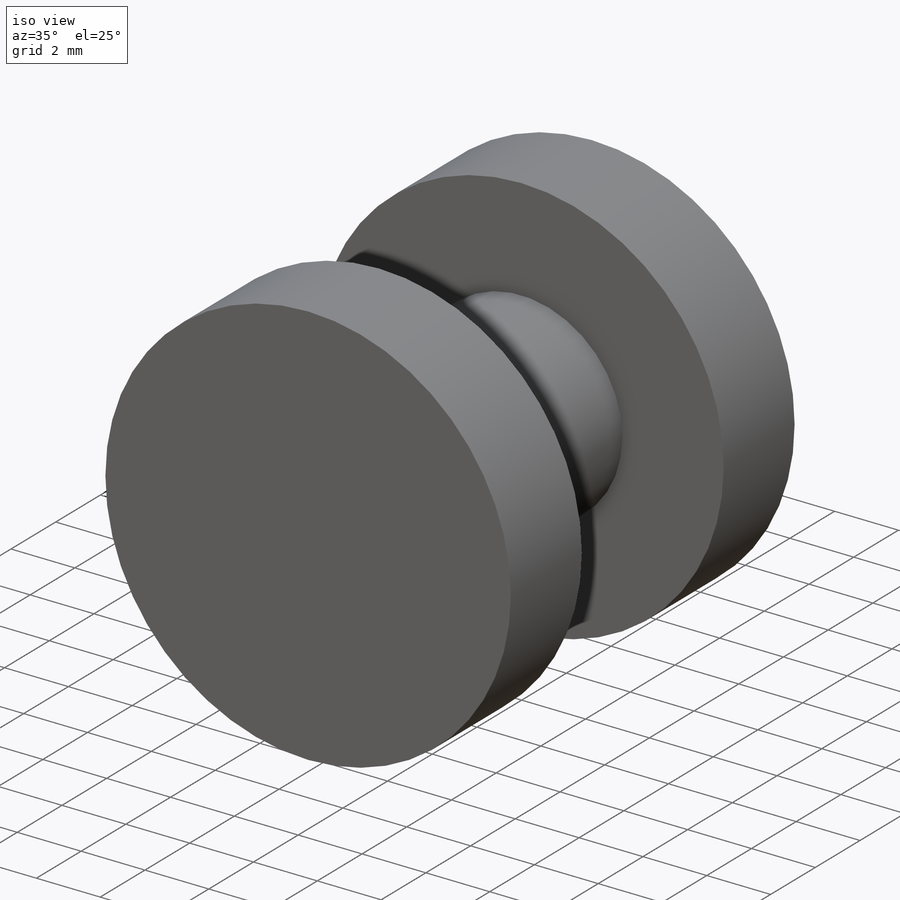
[diagram: iso view]
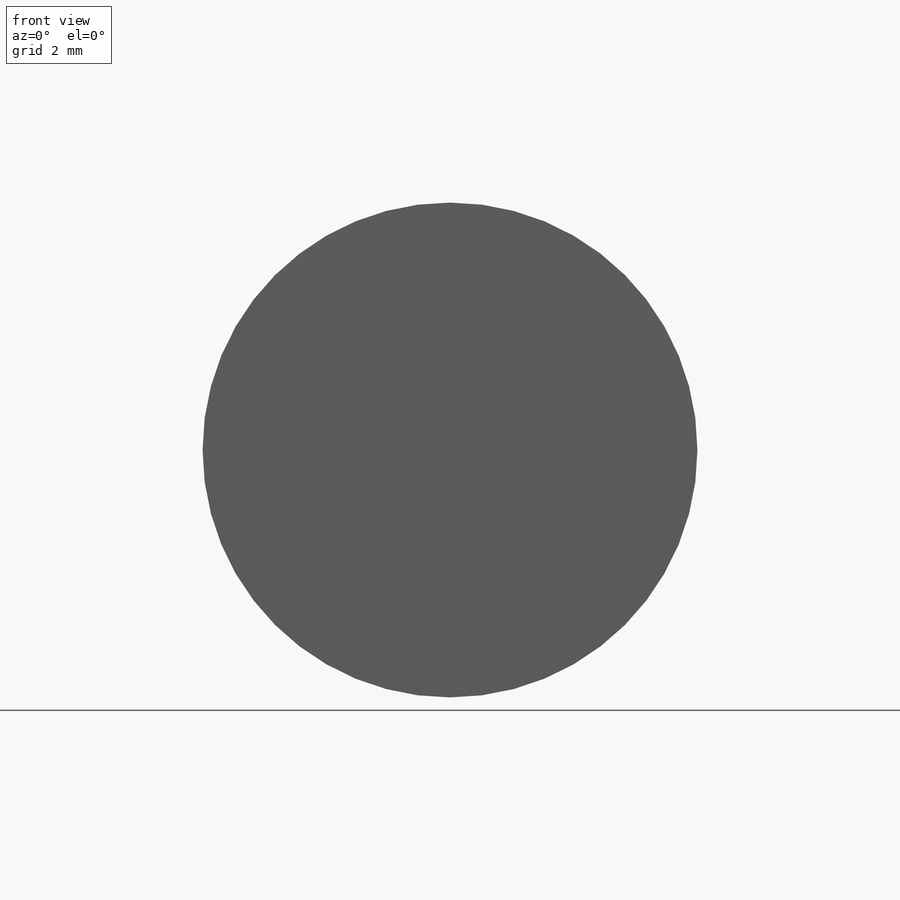
[diagram: front view]
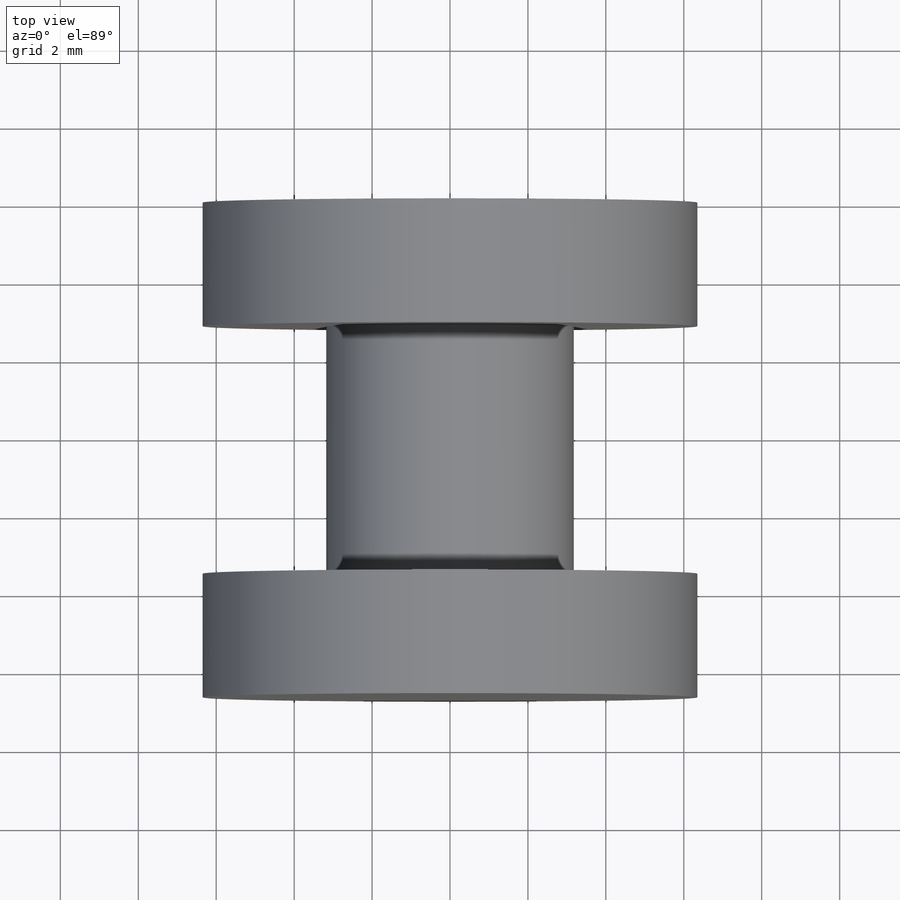
[diagram: top view]
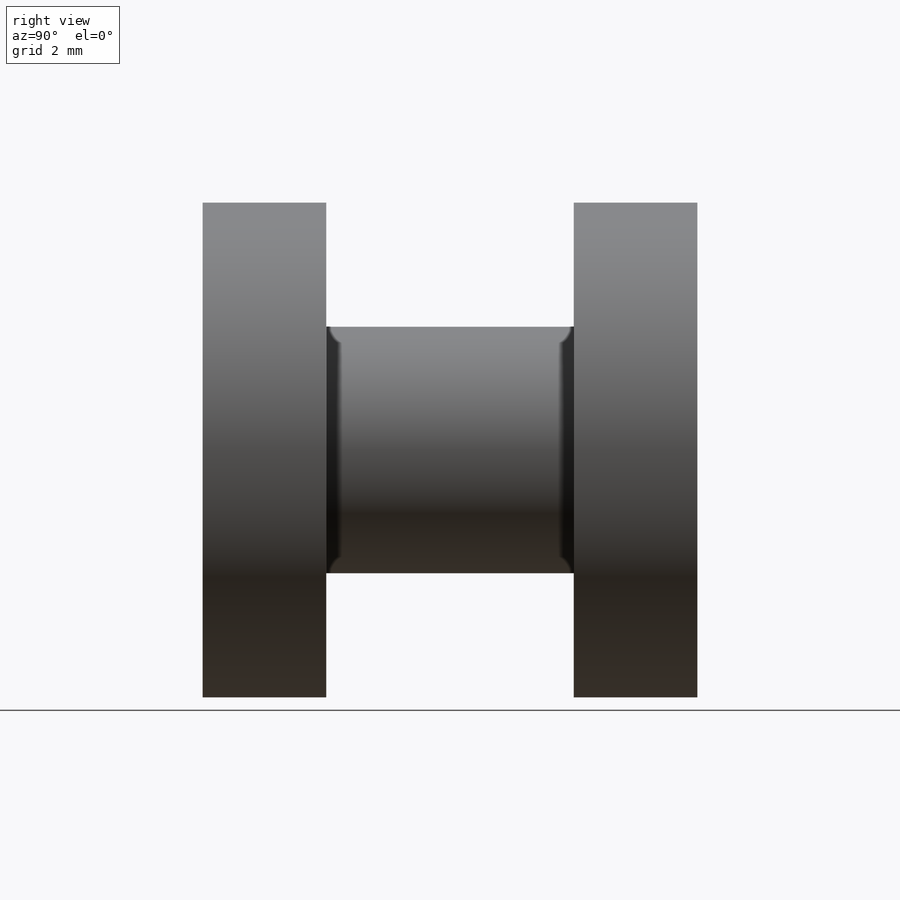
[diagram: right view]
SOLIDWORKS PART (.sldprt)
format: sldprt  version: not decoded by parser v0  size: 151,040 bytes
history: native  units: mm
features: sketch x3, extrude x3, material x1 (+12 scaffold rows collapsed)
feature tree (19):
  scaffold x12  (default folders/planes/origin — collapsed)
  material  "Material <not specified>"
  sketch  "Sketch1"  dims[D1=12.7mm]
  extrude  "Boss-Extrude2"  Depth=3.175mm
  sketch  "Sketch2"  dims[D1=6.35mm]
  extrude  "Boss-Extrude3"  Depth=6.35mm
  sketch  "Sketch3"  dims[D1=12.7mm]
  extrude  "Boss-Extrude4"  Depth=3.175mm
decode coverage: 6 of 6 modeling features carry decoded parameters
note: suppression state not decoded; provenance and decode notes live in map.json
